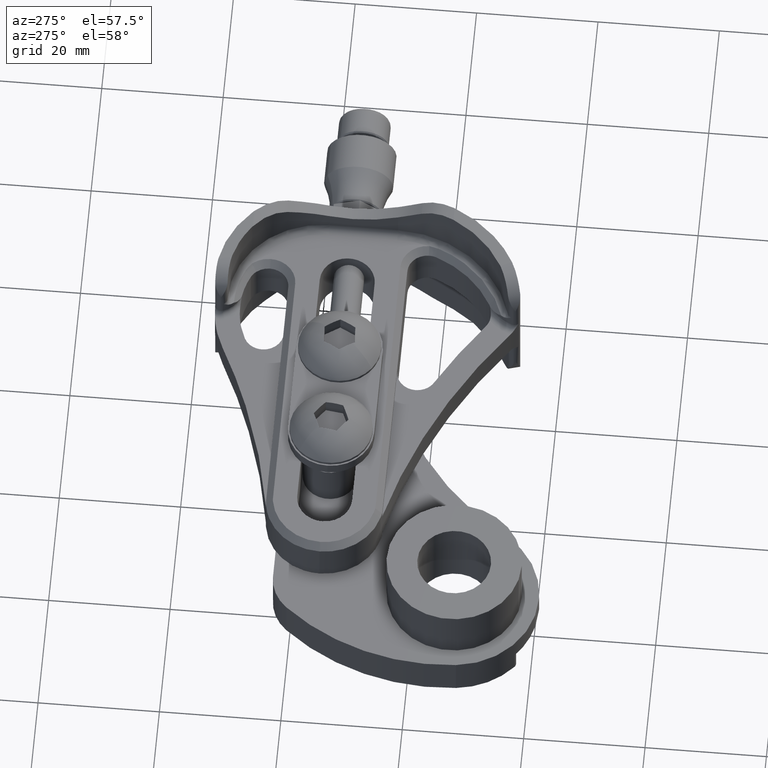
[diagram: clean part render]
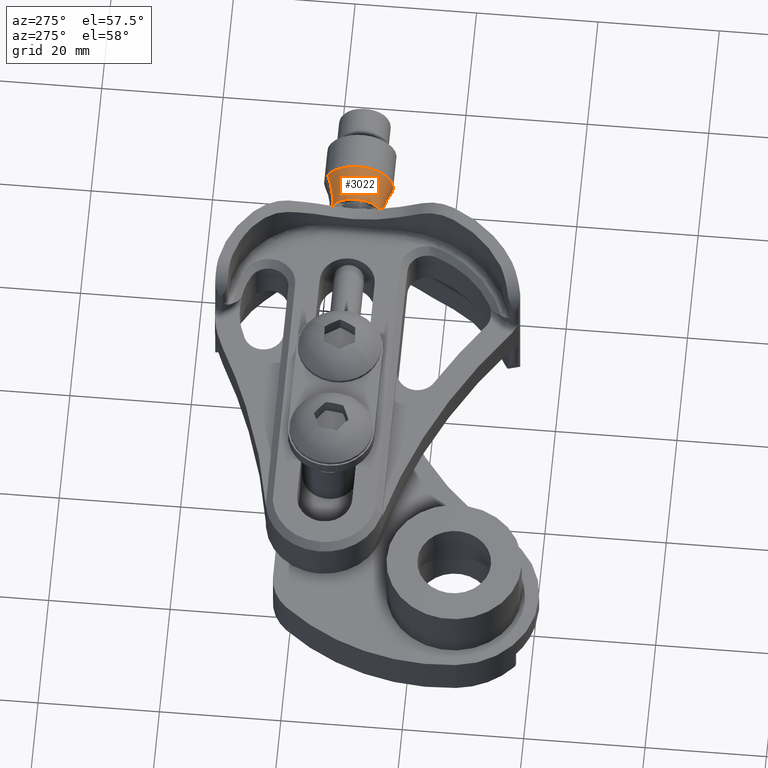
[diagram: same view with one face highlighted and labeled with its STEP entity id]
A machine part, auxiliary view. The second image highlights one B-rep face of the part: STEP entity #3022.
In plain terms, the highlighted toroidal blend (fillet) surface has major radius 16.4009 mm and minor (blend) radius 12.1009 mm.
Its self-contained STEP definition (entity closure, byte-faithful):
#117 = CARTESIAN_POINT ( 'NONE',  ( 0.2224409448818915058, -9.399172072478019580E-20, -0.2244094488188987380 ) ) ;
#191 = ORIENTED_EDGE ( 'NONE', *, *, #1072, .F. ) ;
#392 = CIRCLE ( 'NONE', #6379, 0.4764131046119243207 ) ;
#410 = EDGE_CURVE ( 'NONE', #830, #2241, #3368, .T. ) ;
#445 = ORIENTED_EDGE ( 'NONE', *, *, #4603, .T. ) ;
#830 = VERTEX_POINT ( 'NONE', #2461 ) ;
#1009 = CARTESIAN_POINT ( 'NONE',  ( -9.728172604424271405E-17, -1.001429970571697398E-16, -0.6457044431946041829 ) ) ;
#1072 = EDGE_CURVE ( 'NONE', #8000, #2241, #4430, .T. ) ;
#1134 = AXIS2_PLACEMENT_3D ( 'NONE', #4538, #8936, #5801 ) ;
#1326 = DIRECTION ( 'NONE',  ( 1.521687259628772098E-16, 2.775557561999087551E-16, 1.000000000000000000 ) ) ;
#1738 = DIRECTION ( 'NONE',  ( 1.000000000000000000, 1.560410168352346870E-16, 1.037502837290048076E-16 ) ) ;
#2050 = DIRECTION ( 'NONE',  ( -1.560410168352346623E-16, 1.000000000000000000, -1.550910762851732865E-16 ) ) ;
#2241 = VERTEX_POINT ( 'NONE', #117 ) ;
#2461 = CARTESIAN_POINT ( 'NONE',  ( 0.2224409448818915058, 9.699604549049510663E-17, 0.2244094488188995429 ) ) ;
#2559 = ORIENTED_EDGE ( 'NONE', *, *, #410, .T. ) ;
#3022 = ADVANCED_FACE ( 'NONE', ( #7382 ), #7167, .F. ) ;
#3125 = AXIS2_PLACEMENT_3D ( 'NONE', #1009, #2050, #9142 ) ;
#3225 = DIRECTION ( 'NONE',  ( 1.560410168352346623E-16, -1.000000000000000000, 2.775557561999088537E-16 ) ) ;
#3368 = CIRCLE ( 'NONE', #3504, 0.2244094488188985437 ) ;
#3504 = AXIS2_PLACEMENT_3D ( 'NONE', #9542, #4466, #1326 ) ;
#3545 = DIRECTION ( 'NONE',  ( 0.0000000000000000000, -2.775557561999088044E-16, -1.000000000000000000 ) ) ;
#4430 = CIRCLE ( 'NONE', #3125, 0.4764131046119243207 ) ;
#4466 = DIRECTION ( 'NONE',  ( -1.000000000000000000, -1.560410168352346870E-16, -1.037502837290048076E-16 ) ) ;
#4538 = CARTESIAN_POINT ( 'NONE',  ( 0.0000000000000000000, 0.0000000000000000000, 0.0000000000000000000 ) ) ;
#4575 = CIRCLE ( 'NONE', #9350, 0.1693575111636801689 ) ;
#4603 = EDGE_CURVE ( 'NONE', #4698, #830, #392, .T. ) ;
#4698 = VERTEX_POINT ( 'NONE', #6175 ) ;
#5801 = DIRECTION ( 'NONE',  ( -1.037502837290048692E-16, 2.775557561999087551E-16, 1.000000000000000000 ) ) ;
#5977 = ORIENTED_EDGE ( 'NONE', *, *, #7621, .T. ) ;
#6175 = CARTESIAN_POINT ( 'NONE',  ( 0.007940188329034068154, 1.153023519207763318E-16, 0.1693575111636801689 ) ) ;
#6226 = CARTESIAN_POINT ( 'NONE',  ( 0.007940188329034042133, 6.829619984160658046E-17, 0.0000000000000000000 ) ) ;
#6379 = AXIS2_PLACEMENT_3D ( 'NONE', #8010, #3225, #3545 ) ;
#6799 = CARTESIAN_POINT ( 'NONE',  ( 0.007940188329034059481, -1.256041767167591588E-17, -0.1693575111636794472 ) ) ;
#6954 = DIRECTION ( 'NONE',  ( 1.512249132892012474E-16, 2.775557561999088537E-16, 1.000000000000000000 ) ) ;
#7167 = TOROIDAL_SURFACE ( 'NONE', #1134, 0.6457044431946015184, 0.4764131046119243207 ) ;
#7382 = FACE_OUTER_BOUND ( 'NONE', #8601, .T. ) ;
#7621 = EDGE_CURVE ( 'NONE', #8000, #4698, #4575, .T. ) ;
#8000 = VERTEX_POINT ( 'NONE', #6799 ) ;
#8010 = CARTESIAN_POINT ( 'NONE',  ( 9.728172604424270173E-17, 1.792189850125194362E-16, 0.6457044431946041829 ) ) ;
#8601 = EDGE_LOOP ( 'NONE', ( #191, #5977, #445, #2559 ) ) ;
#8936 = DIRECTION ( 'NONE',  ( -1.000000000000000000, -1.560410168352346870E-16, -1.037502837290048076E-16 ) ) ;
#9142 = DIRECTION ( 'NONE',  ( -1.000000000000000000, -1.560410168352346870E-16, 0.0000000000000000000 ) ) ;
#9350 = AXIS2_PLACEMENT_3D ( 'NONE', #6226, #1738, #6954 ) ;
#9542 = CARTESIAN_POINT ( 'NONE',  ( 0.2224409448818915058, -1.365923996832131609E-16, 1.863450957214988570E-28 ) ) ;